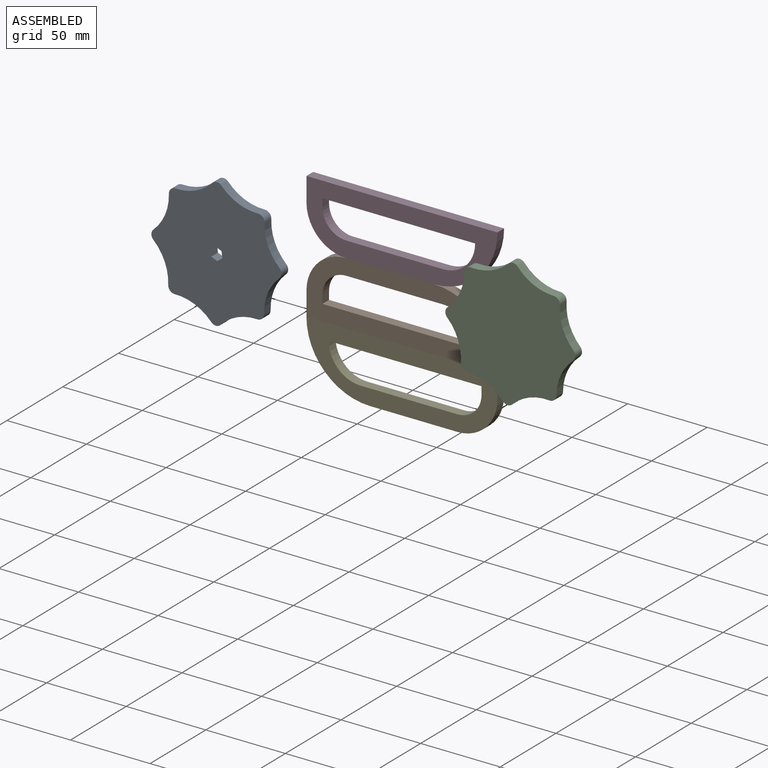
[diagram: assembled view]
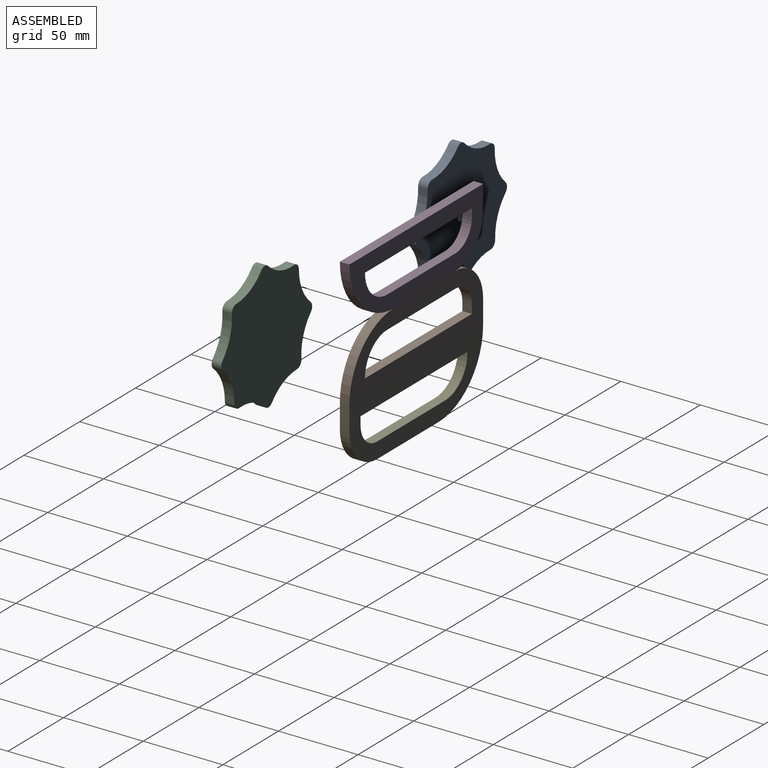
[diagram: assembled view, second angle]
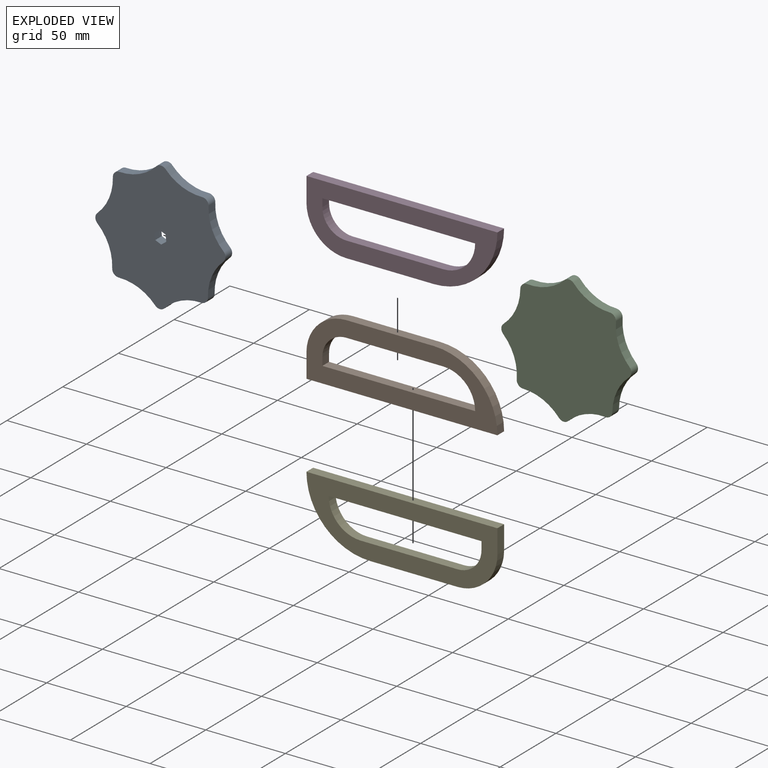
[diagram: exploded view]
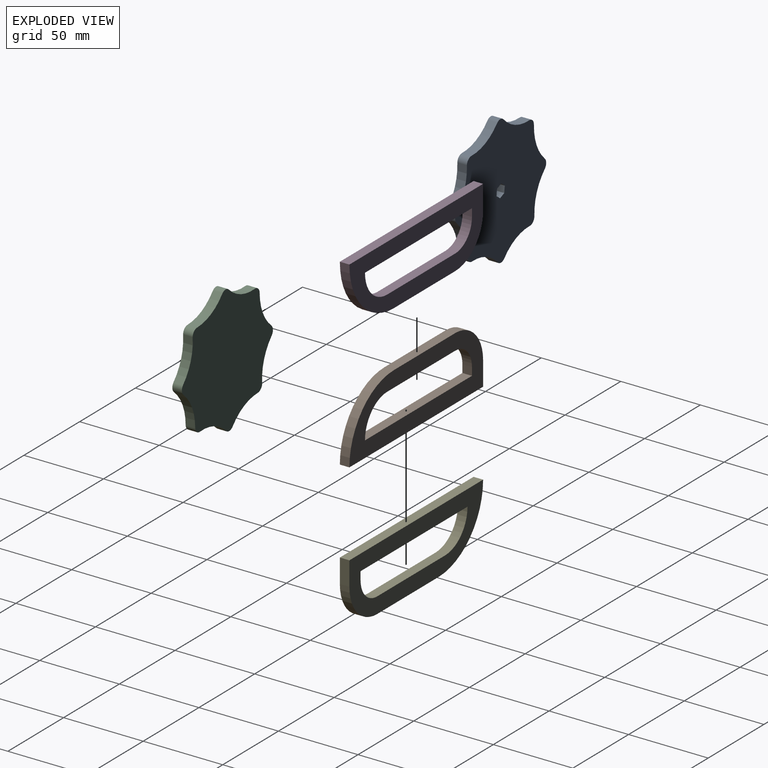
[diagram: exploded view, second angle]
ASSEMBLY  parts=5 mates=2
PART A: 24 faces, bbox 76.2x76.2x6 mm
  f0: plane 6x3.5mm, normal (0.87,-0.5,0), area 24.2mm2, adj f1,f21,f22,f23
  f1: plane 6x4.04mm, normal (0,-1,0), area 24.2mm2, adj f0,f2,f22,f23
  f2: plane 6x3.5mm, normal (-0.87,-0.5,0), area 24.2mm2, adj f1,f3,f22,f23
  f3: plane 6x3.5mm, normal (-0.87,0.5,0), area 24.2mm2, adj f2,f4,f22,f23
  f4: plane 6x4.04mm, normal (0,1,0), area 24.2mm2, adj f3,f21,f22,f23
  f5: cylinder r=30mm len=17.61mm, axis (0,0,-1), area 154.1mm2, adj f6,f20,f22,f23
  f6: cylinder r=4mm len=6mm, axis (0,0,-1), area 39.4mm2, adj f5,f7,f22,f23
  f7: cylinder r=30mm len=24.91mm, axis (0,0,-1), area 154.1mm2, adj f6,f8,f22,f23
  f8: cylinder r=4mm len=6mm, axis (0,0,-1), area 39.4mm2, adj f7,f9,f22,f23
  f9: cylinder r=30mm len=17.61mm, axis (0,0,-1), area 154.1mm2, adj f8,f10,f22,f23
  f10: cylinder r=4mm len=6mm, axis (0,0,-1), area 39.4mm2, adj f9,f11,f22,f23
  f11: cylinder r=30mm len=24.91mm, axis (0,0,-1), area 154.1mm2, adj f10,f12,f22,f23
  f12: cylinder r=4mm len=6mm, axis (0,0,-1), area 39.4mm2, adj f11,f13,f22,f23
  f13: cylinder r=30mm len=17.61mm, axis (0,0,-1), area 154.1mm2, adj f12,f14,f22,f23
  f14: cylinder r=4mm len=6mm, axis (0,0,-1), area 39.4mm2, adj f13,f15,f22,f23
  f15: cylinder r=30mm len=24.91mm, axis (0,0,-1), area 154.1mm2, adj f14,f16,f22,f23
  f16: cylinder r=4mm len=6mm, axis (0,0,-1), area 39.4mm2, adj f15,f17,f22,f23
  f17: cylinder r=30mm len=17.61mm, axis (0,0,-1), area 154.1mm2, adj f16,f18,f22,f23
  f18: cylinder r=4mm len=6mm, axis (0,0,-1), area 39.4mm2, adj f17,f19,f22,f23
  f19: cylinder r=30mm len=24.91mm, axis (0,0,-1), area 154.1mm2, adj f18,f20,f22,f23
  f20: cylinder r=4mm len=6mm, axis (0,0,-1), area 39.4mm2, adj f5,f19,f22,f23
  f21: plane 6x3.5mm, normal (0.87,0.5,0), area 24.2mm2, adj f0,f4,f22,f23
  f22: plane 76.16x76.16mm, normal (0,0,1), area 4321.4mm2, adj f0,f1,f2,f3,f4,f5,f6,f7
  f23: plane 76.16x76.16mm, normal (0,0,-1), area 4321.4mm2, adj f0,f1,f2,f3,f4,f5,f6,f7
PART B: 12 faces, bbox 120x6x40 mm
  f0: plane 96x6mm, normal (0,0,1), area 576mm2, adj f1,f9,f10,f11
  f1: plane 6x5mm, normal (1,0,0), area 30mm2, adj f0,f2,f10,f11
  f2: cylinder r=15mm len=15mm, axis (0,1,0), area 141.4mm2, adj f1,f3,f10,f11
  f3: plane 61x6mm, normal (0,0,-1), area 366mm2, adj f2,f9,f10,f11
  f4: plane 15x6mm, normal (-1,0,0), area 90mm2, adj f5,f8,f10,f11
  f5: plane 120x6mm, normal (0,0,-1), area 720mm2, adj f4,f6,f10,f11
  f6: cylinder r=40mm len=40mm, axis (0,1,0), area 377mm2, adj f5,f7,f10,f11
  f7: plane 55x6mm, normal (0,0,1), area 330mm2, adj f6,f8,f10,f11
  f8: cylinder r=25mm len=25mm, axis (0,1,0), area 235.6mm2, adj f4,f7,f10,f11
  f9: cylinder r=20mm len=20mm, axis (0,1,0), area 188.5mm2, adj f0,f3,f10,f11
  f10: plane 120x40mm, normal (0,-1,0), area 2536.6mm2, adj f0,f1,f2,f3,f4,f5,f6,f7
  f11: plane 120x40mm, normal (0,1,0), area 2536.6mm2, adj f0,f1,f2,f3,f4,f5,f6,f7
PART C: 18 faces, bbox 76.2x76.2x6 mm
  f0: cylinder r=30mm len=17.61mm, axis (0,0,-1), area 154.1mm2, adj f1,f15,f16,f17
  f1: cylinder r=4mm len=6mm, axis (0,0,-1), area 39.4mm2, adj f0,f2,f16,f17
  f2: cylinder r=30mm len=24.91mm, axis (0,0,-1), area 154.1mm2, adj f1,f3,f16,f17
  f3: cylinder r=4mm len=6mm, axis (0,0,-1), area 39.4mm2, adj f2,f4,f16,f17
  f4: cylinder r=30mm len=17.61mm, axis (0,0,-1), area 154.1mm2, adj f3,f5,f16,f17
  f5: cylinder r=4mm len=6mm, axis (0,0,-1), area 39.4mm2, adj f4,f6,f16,f17
  f6: cylinder r=30mm len=24.91mm, axis (0,0,-1), area 154.1mm2, adj f5,f7,f16,f17
  f7: cylinder r=4mm len=6mm, axis (0,0,-1), area 39.4mm2, adj f6,f8,f16,f17
  f8: cylinder r=30mm len=17.61mm, axis (0,0,-1), area 154.1mm2, adj f7,f9,f16,f17
  f9: cylinder r=4mm len=6mm, axis (0,0,-1), area 39.4mm2, adj f8,f10,f16,f17
  f10: cylinder r=30mm len=24.91mm, axis (0,0,-1), area 154.1mm2, adj f9,f11,f16,f17
  f11: cylinder r=4mm len=6mm, axis (0,0,-1), area 39.4mm2, adj f10,f12,f16,f17
  f12: cylinder r=30mm len=17.61mm, axis (0,0,-1), area 154.1mm2, adj f11,f13,f16,f17
  f13: cylinder r=4mm len=6mm, axis (0,0,-1), area 39.4mm2, adj f12,f14,f16,f17
  f14: cylinder r=30mm len=24.91mm, axis (0,0,-1), area 154.1mm2, adj f13,f15,f16,f17
  f15: cylinder r=4mm len=6mm, axis (0,0,-1), area 39.4mm2, adj f0,f14,f16,f17
  f16: plane 76.16x76.16mm, normal (0,0,1), area 4363.8mm2, adj f0,f1,f2,f3,f4,f5,f6,f7
  f17: plane 76.16x76.16mm, normal (0,0,-1), area 4363.8mm2, adj f0,f1,f2,f3,f4,f5,f6,f7
PART D: same geometry as B
PART E: same geometry as B
PLACE A rot(axis=(-0.96,0.2,0.2),92.3deg) t=(-164.83,-26.45,-38.25)mm
PLACE B t=(-13.27,15.28,-79.2)mm
PLACE C rot(axis=(0.97,-0.17,0.17),91.7deg) t=(16.6,-15.8,-36.99)mm
PLACE D rot(axis=(1,0,0),180deg) t=(-13.27,9.28,0.8)mm
PLACE E rot(axis=(0,1,0),180deg) t=(-133.27,15.28,-79.2)mm
MATE fastened E.f5 <-> B.f5  axis (0,0,1) through (-73.27,9.28,-79.2)mm
MATE fastened D.f7 <-> B.f7  axis (0,0,-1) through (-108.27,15.28,-39.2)mm
